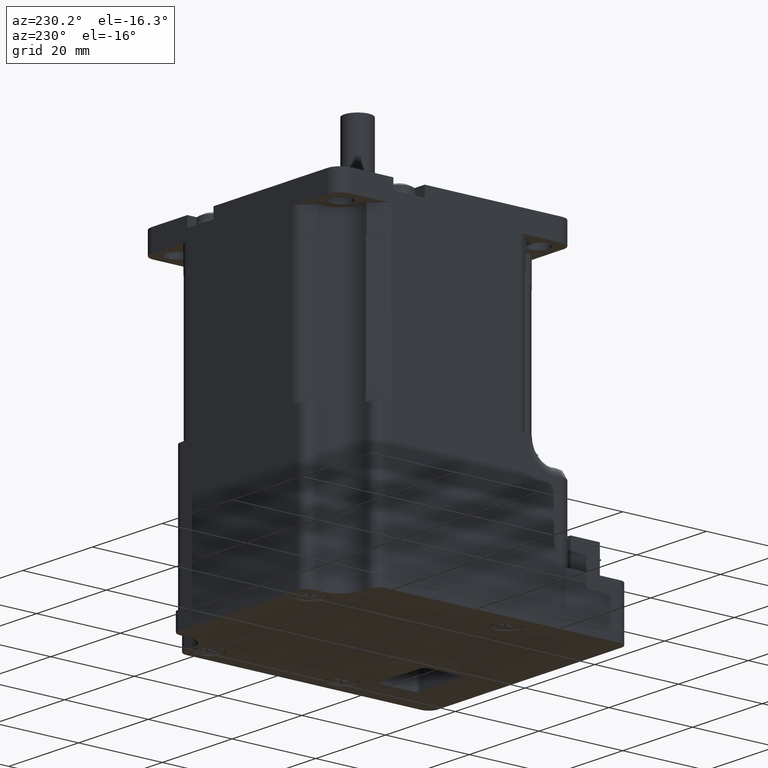
[diagram: clean part render]
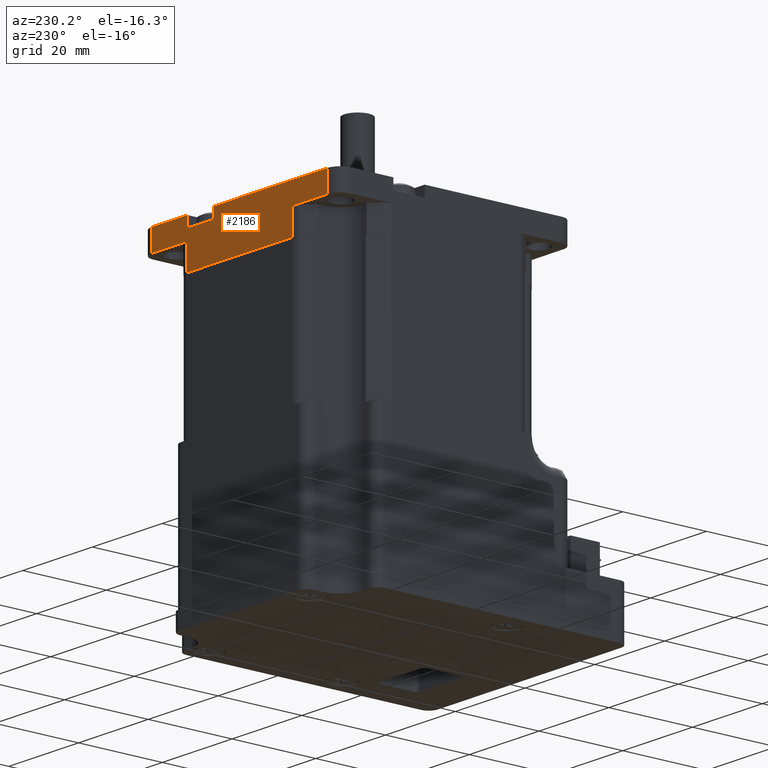
[diagram: same view with one face highlighted and labeled with its STEP entity id]
A machine part, auxiliary view. The second image highlights one B-rep face of the part: STEP entity #2186.
In plain terms, the highlighted planar face has unit normal (0, 1, 0).
Its self-contained STEP definition (entity closure, byte-faithful):
#351=CARTESIAN_POINT('',(-25.200000000000014,28.20000000000001,6.000000000000002));
#352=VERTEX_POINT('',#351);
#370=CARTESIAN_POINT('',(-25.200000000000014,28.20000000000001,11.0));
#371=VERTEX_POINT('',#370);
#379=CARTESIAN_POINT('',(-25.200000000000014,28.20000000000001,11.0));
#380=DIRECTION('',(0.0,0.0,-1.0));
#381=VECTOR('',#380,4.999999999999999);
#382=LINE('',#379,#381);
#383=EDGE_CURVE('',#371,#352,#382,.T.);
#395=CARTESIAN_POINT('',(25.200000000000014,28.20000000000001,6.000000000000002));
#396=VERTEX_POINT('',#395);
#404=CARTESIAN_POINT('',(25.200000000000014,28.20000000000001,11.0));
#405=VERTEX_POINT('',#404);
#406=CARTESIAN_POINT('',(25.200000000000014,28.20000000000001,6.000000000000002));
#407=DIRECTION('',(0.0,0.0,1.0));
#408=VECTOR('',#407,4.999999999999998);
#409=LINE('',#406,#408);
#410=EDGE_CURVE('',#396,#405,#409,.T.);
#873=CARTESIAN_POINT('',(14.949999999999994,28.20000000000001,11.0));
#874=VERTEX_POINT('',#873);
#875=CARTESIAN_POINT('',(14.949999999999994,28.20000000000001,11.0));
#876=DIRECTION('',(1.0,0.0,0.0));
#877=VECTOR('',#876,10.25000000000002);
#878=LINE('',#875,#877);
#879=EDGE_CURVE('',#874,#405,#878,.T.);
#898=CARTESIAN_POINT('',(7.449999999999998,28.20000000000001,11.0));
#899=VERTEX_POINT('',#898);
#906=CARTESIAN_POINT('',(-25.200000000000014,28.20000000000001,11.0));
#907=DIRECTION('',(1.0,0.0,0.0));
#908=VECTOR('',#907,32.650000000000013);
#909=LINE('',#906,#908);
#910=EDGE_CURVE('',#371,#899,#909,.T.);
#1024=CARTESIAN_POINT('',(14.949999999999994,28.20000000000001,8.5));
#1025=VERTEX_POINT('',#1024);
#1039=CARTESIAN_POINT('',(14.949999999999994,28.20000000000001,8.5));
#1040=DIRECTION('',(0.0,0.0,1.0));
#1041=VECTOR('',#1040,2.5);
#1042=LINE('',#1039,#1041);
#1043=EDGE_CURVE('',#1025,#874,#1042,.T.);
#1078=CARTESIAN_POINT('',(7.449999999999998,28.20000000000001,8.5));
#1079=VERTEX_POINT('',#1078);
#1086=CARTESIAN_POINT('',(7.449999999999998,28.20000000000001,11.0));
#1087=DIRECTION('',(0.0,0.0,-1.0));
#1088=VECTOR('',#1087,2.5);
#1089=LINE('',#1086,#1088);
#1090=EDGE_CURVE('',#899,#1079,#1089,.T.);
#1240=CARTESIAN_POINT('',(15.247308806541877,28.20000000000001,6.000000000000002));
#1241=VERTEX_POINT('',#1240);
#1249=CARTESIAN_POINT('',(25.200000000000014,28.20000000000001,6.000000000000002));
#1250=DIRECTION('',(-1.0,0.0,0.0));
#1251=VECTOR('',#1250,9.952691193458136);
#1252=LINE('',#1249,#1251);
#1253=EDGE_CURVE('',#396,#1241,#1252,.T.);
#1411=CARTESIAN_POINT('',(-15.247308806541886,28.20000000000001,6.000000000000002));
#1412=VERTEX_POINT('',#1411);
#1413=CARTESIAN_POINT('',(-15.247308806541886,28.20000000000001,6.000000000000002));
#1414=DIRECTION('',(-1.0,0.0,0.0));
#1415=VECTOR('',#1414,9.952691193458128);
#1416=LINE('',#1413,#1415);
#1417=EDGE_CURVE('',#1412,#352,#1416,.T.);
#2098=CARTESIAN_POINT('',(15.247308806541877,28.20000000000001,0.0));
#2099=VERTEX_POINT('',#2098);
#2107=CARTESIAN_POINT('',(15.247308806541877,28.20000000000001,0.0));
#2108=DIRECTION('',(0.0,0.0,1.0));
#2109=VECTOR('',#2108,6.000000000000002);
#2110=LINE('',#2107,#2109);
#2111=EDGE_CURVE('',#2099,#1241,#2110,.T.);
#2118=CARTESIAN_POINT('',(-28.20000000000001,28.20000000000001,0.0));
#2119=DIRECTION('',(0.0,1.0,0.0));
#2120=DIRECTION('',(0.0,0.0,1.0));
#2121=AXIS2_PLACEMENT_3D('',#2118,#2119,#2120);
#2122=PLANE('',#2121);
#2123=CARTESIAN_POINT('',(-15.247308806541886,28.20000000000001,0.0));
#2124=VERTEX_POINT('',#2123);
#2125=CARTESIAN_POINT('',(-15.247308806541886,28.20000000000001,6.000000000000002));
#2126=DIRECTION('',(0.0,0.0,-1.0));
#2127=VECTOR('',#2126,6.000000000000002);
#2128=LINE('',#2125,#2127);
#2129=EDGE_CURVE('',#1412,#2124,#2128,.T.);
#2130=ORIENTED_EDGE('',*,*,#2129,.F.);
#2131=ORIENTED_EDGE('',*,*,#1417,.T.);
#2132=ORIENTED_EDGE('',*,*,#383,.F.);
#2133=ORIENTED_EDGE('',*,*,#910,.T.);
#2134=ORIENTED_EDGE('',*,*,#1090,.T.);
#2135=CARTESIAN_POINT('',(10.263250300240234,28.20000000000001,8.499999999999996));
#2136=VERTEX_POINT('',#2135);
#2137=CARTESIAN_POINT('',(7.449999999999998,28.20000000000001,8.5));
#2138=DIRECTION('',(1.0,0.0,0.0));
#2139=VECTOR('',#2138,2.813250300240236);
#2140=LINE('',#2137,#2139);
#2141=EDGE_CURVE('',#1079,#2136,#2140,.T.);
#2142=ORIENTED_EDGE('',*,*,#2141,.T.);
#2143=CARTESIAN_POINT('',(12.136749699759752,28.20000000000001,8.499999999999996));
#2144=VERTEX_POINT('',#2143);
#2145=CARTESIAN_POINT('',(10.263250300240234,28.20000000000001,8.5));
#2146=DIRECTION('',(1.0,0.0,0.0));
#2147=VECTOR('',#2146,1.873499399519519);
#2148=LINE('',#2145,#2147);
#2149=EDGE_CURVE('',#2136,#2144,#2148,.T.);
#2150=ORIENTED_EDGE('',*,*,#2149,.T.);
#2151=CARTESIAN_POINT('',(12.136749699759752,28.20000000000001,8.5));
#2152=DIRECTION('',(1.0,0.0,0.0));
#2153=VECTOR('',#2152,2.813250300240242);
#2154=LINE('',#2151,#2153);
#2155=EDGE_CURVE('',#2144,#1025,#2154,.T.);
#2156=ORIENTED_EDGE('',*,*,#2155,.T.);
#2157=ORIENTED_EDGE('',*,*,#1043,.T.);
#2158=ORIENTED_EDGE('',*,*,#879,.T.);
#2159=ORIENTED_EDGE('',*,*,#410,.F.);
#2160=ORIENTED_EDGE('',*,*,#1253,.T.);
#2161=ORIENTED_EDGE('',*,*,#2111,.F.);
#2162=CARTESIAN_POINT('',(15.189244091316834,28.20000000000001,0.0));
#2163=VERTEX_POINT('',#2162);
#2164=CARTESIAN_POINT('',(15.189244091316834,28.20000000000001,0.0));
#2165=DIRECTION('',(1.0,0.0,0.0));
#2166=VECTOR('',#2165,0.058064715225044);
#2167=LINE('',#2164,#2166);
#2168=EDGE_CURVE('',#2163,#2099,#2167,.T.);
#2169=ORIENTED_EDGE('',*,*,#2168,.F.);
#2170=CARTESIAN_POINT('',(-15.189244091316827,28.20000000000001,0.0));
#2171=VERTEX_POINT('',#2170);
#2172=CARTESIAN_POINT('',(-15.189244091316827,28.20000000000001,0.0));
#2173=DIRECTION('',(1.0,0.0,0.0));
#2174=VECTOR('',#2173,30.378488182633657);
#2175=LINE('',#2172,#2174);
#2176=EDGE_CURVE('',#2171,#2163,#2175,.T.);
#2177=ORIENTED_EDGE('',*,*,#2176,.F.);
#2178=CARTESIAN_POINT('',(-15.247308806541886,28.20000000000001,0.0));
#2179=DIRECTION('',(1.0,0.0,0.0));
#2180=VECTOR('',#2179,0.05806471522506);
#2181=LINE('',#2178,#2180);
#2182=EDGE_CURVE('',#2124,#2171,#2181,.T.);
#2183=ORIENTED_EDGE('',*,*,#2182,.F.);
#2184=EDGE_LOOP('',(#2130,#2131,#2132,#2133,#2134,#2142,#2150,#2156,#2157,#2158,#2159,#2160,#2161,#2169,#2177,#2183));
#2185=FACE_OUTER_BOUND('',#2184,.T.);
#2186=ADVANCED_FACE('',(#2185),#2122,.T.);